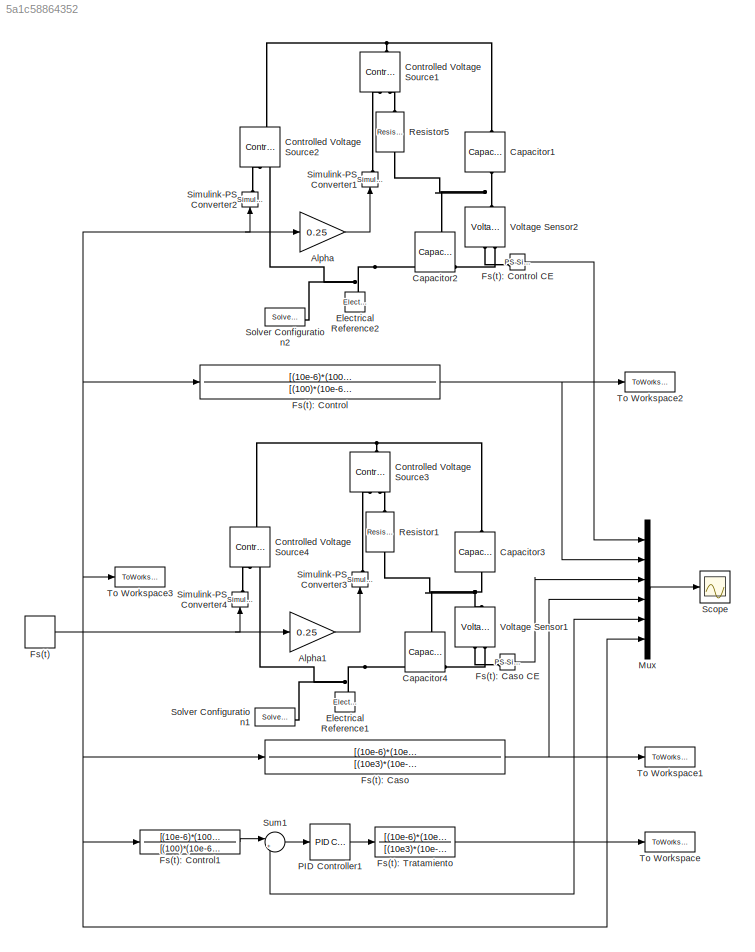
MODEL slx_5a1c58864352
KIND model
CONFIG AbsTol = auto
CONFIG EnableMultiTasking = off
CONFIG FixedStep = auto
CONFIG MaxStep = 1E-3
CONFIG MinStep = auto
CONFIG RelTol = 1e-3
CONFIG SampleTimeConstraint = Unconstrained
CONFIG SolverName = ode23t
CONFIG StartTime = 0.0
CONFIG StopTime = 10.0
BLOCK [Gain] Alpha
  Gain = 0.25
BLOCK [Gain] Alpha1
  Gain = 0.25
BLOCK [Reference] Capacitor1  REF=fl_lib/Electrical/Electrical Elements/Capacitor
  NameLocation = left
  SourceBlock = fl_lib/Electrical/Electrical Elements/Capacitor
  SourceType = Capacitor
BLOCK [Reference] Capacitor2  REF=fl_lib/Electrical/Electrical Elements/Capacitor
  NameLocation = left
  SourceBlock = fl_lib/Electrical/Electrical Elements/Capacitor
  SourceType = Capacitor
BLOCK [Reference] Capacitor3  REF=fl_lib/Electrical/Electrical Elements/Capacitor
  NameLocation = left
  SourceBlock = fl_lib/Electrical/Electrical Elements/Capacitor
  SourceType = Capacitor
BLOCK [Reference] Capacitor4  REF=fl_lib/Electrical/Electrical Elements/Capacitor
  NameLocation = left
  SourceBlock = fl_lib/Electrical/Electrical Elements/Capacitor
  SourceType = Capacitor
BLOCK [Reference] Controlled Voltage Source1  REF=fl_lib/Electrical/Electrical Sources/Controlled Voltage
Source
  NameLocation = right
  SourceBlock = fl_lib/Electrical/Electrical Sources/Controlled Voltage\nSource
  SourceType = Controlled Voltage\nSource
BLOCK [Reference] Controlled Voltage Source2  REF=fl_lib/Electrical/Electrical Sources/Controlled Voltage
Source
  NameLocation = right
  SourceBlock = fl_lib/Electrical/Electrical Sources/Controlled Voltage\nSource
  SourceType = Controlled Voltage\nSource
BLOCK [Reference] Controlled Voltage Source3  REF=fl_lib/Electrical/Electrical Sources/Controlled Voltage
Source
  NameLocation = right
  SourceBlock = fl_lib/Electrical/Electrical Sources/Controlled Voltage\nSource
  SourceType = Controlled Voltage\nSource
BLOCK [Reference] Controlled Voltage Source4  REF=fl_lib/Electrical/Electrical Sources/Controlled Voltage
Source
  NameLocation = right
  SourceBlock = fl_lib/Electrical/Electrical Sources/Controlled Voltage\nSource
  SourceType = Controlled Voltage\nSource
BLOCK [Reference] Electrical Reference1  REF=fl_lib/Electrical/Electrical Elements/Electrical Reference
  NameLocation = right
  SourceBlock = fl_lib/Electrical/Electrical Elements/Electrical Reference
  SourceType = Electrical Reference
BLOCK [Reference] Electrical Reference2  REF=fl_lib/Electrical/Electrical Elements/Electrical Reference
  NameLocation = right
  SourceBlock = fl_lib/Electrical/Electrical Elements/Electrical Reference
  SourceType = Electrical Reference
BLOCK [DiscretePulseGenerator] Fs(t)
  Period = 10
  PhaseDelay = 1
  PulseType = Time based
  PulseWidth = 10
BLOCK [TransferFcn] Fs(t): Caso
  Denominator = [(10e3)*(10e-6+100e-6),1]
  Numerator = [(10e-6)*(10e3),1-0.25]
BLOCK [Reference] Fs(t): Caso CE  REF=nesl_utility/PS-Simulink
Converter
  SourceBlock = nesl_utility/PS-Simulink\nConverter
  SourceType = PS-Simulink\nConverter
BLOCK [TransferFcn] Fs(t): Control
  Denominator = [(100)*(10e-6+100e-6),1]
  Numerator = [(10e-6)*(100),1-0.25]
BLOCK [Reference] Fs(t): Control CE  REF=nesl_utility/PS-Simulink
Converter
  SourceBlock = nesl_utility/PS-Simulink\nConverter
  SourceType = PS-Simulink\nConverter
BLOCK [TransferFcn] Fs(t): Control1
  Denominator = [(100)*(10e-6+100e-6),1]
  Numerator = [(10e-6)*(100),1-0.25]
BLOCK [TransferFcn] Fs(t): Tratamiento
  Denominator = [(10e3)*(10e-6+100e-6),1]
  Numerator = [(10e-6)*(10e3),1-0.25]
BLOCK [Mux] Mux
  DisplayOption = bar
  Inputs = 6
BLOCK [Reference] PID Controller1  REF=slpidlib/PID Controller
  LibrarySourceBlock = simulink/Continuous/PID Controller
  SourceBlock = slpidlib/PID Controller
  SourceType = PID 1dof
BLOCK [Reference] Resistor1  REF=fl_lib/Electrical/Electrical Elements/Resistor
  NameLocation = left
  SourceBlock = fl_lib/Electrical/Electrical Elements/Resistor
  SourceType = Resistor
BLOCK [Reference] Resistor5  REF=fl_lib/Electrical/Electrical Elements/Resistor
  NameLocation = left
  SourceBlock = fl_lib/Electrical/Electrical Elements/Resistor
  SourceType = Resistor
BLOCK [Scope] Scope
  Floating = off
  NumInputPorts = 1
  ScopeSpecificationString = Simulink.scopes.TimeScopeBlockCfg('CurrentConfiguration', extmgr.ConfigurationSet(extmgr.Configuration('Core','General UI',true,'FigureColor',[1 1 1]),extmgr.Configuration('Core','Source UI',true),extmgr.Configuration('Sources','WiredSimulink',true),extmgr.Configuration('Visuals','Time Domain',true,'SerializedDisplays',{struct('MinYLimReal','-0.12602','MaxYLimReal','1.12511','YLabelReal','','MinYL...<+2426ch>
BLOCK [Reference] Simulink-PS Converter1  REF=nesl_utility/Simulink-PS
Converter
  NameLocation = right
  SourceBlock = nesl_utility/Simulink-PS\nConverter
  SourceType = Simulink-PS\nConverter
BLOCK [Reference] Simulink-PS Converter2  REF=nesl_utility/Simulink-PS
Converter
  NameLocation = right
  SourceBlock = nesl_utility/Simulink-PS\nConverter
  SourceType = Simulink-PS\nConverter
BLOCK [Reference] Simulink-PS Converter3  REF=nesl_utility/Simulink-PS
Converter
  NameLocation = right
  SourceBlock = nesl_utility/Simulink-PS\nConverter
  SourceType = Simulink-PS\nConverter
BLOCK [Reference] Simulink-PS Converter4  REF=nesl_utility/Simulink-PS
Converter
  NameLocation = right
  SourceBlock = nesl_utility/Simulink-PS\nConverter
  SourceType = Simulink-PS\nConverter
BLOCK [Reference] Solver Configuration1  REF=nesl_utility/Solver
Configuration
  SourceBlock = nesl_utility/Solver\nConfiguration
  SourceType = Solver\nConfiguration
BLOCK [Reference] Solver Configuration2  REF=nesl_utility/Solver
Configuration
  SourceBlock = nesl_utility/Solver\nConfiguration
  SourceType = Solver\nConfiguration
BLOCK [Sum] Sum1
  Inputs = |+-
BLOCK [ToWorkspace] To Workspace
  FixptAsFi = on
  MaxDataPoints = inf
  SampleTime = -1
  VariableName = Fs3
BLOCK [ToWorkspace] To Workspace1
  FixptAsFi = on
  MaxDataPoints = inf
  SampleTime = -1
  VariableName = Fs2
BLOCK [ToWorkspace] To Workspace2
  FixptAsFi = on
  MaxDataPoints = inf
  SampleTime = -1
  VariableName = Fs1
BLOCK [ToWorkspace] To Workspace3
  FixptAsFi = on
  MaxDataPoints = inf
  SampleTime = -1
  VariableName = Fs
BLOCK [Reference] Voltage Sensor1  REF=fl_lib/Electrical/Electrical Sensors/Voltage Sensor
  NameLocation = right
  SourceBlock = fl_lib/Electrical/Electrical Sensors/Voltage Sensor
  SourceType = Voltage Sensor
BLOCK [Reference] Voltage Sensor2  REF=fl_lib/Electrical/Electrical Sensors/Voltage Sensor
  NameLocation = right
  SourceBlock = fl_lib/Electrical/Electrical Sensors/Voltage Sensor
  SourceType = Voltage Sensor
LINE Alpha1:1 -> Simulink-PS Converter3:1
LINE Alpha:1 -> Simulink-PS Converter1:1
LINE Fs(t): Caso CE:1 -> Mux:3
NET Fs(t): Caso:1 -> Mux:4, To Workspace1:1
LINE Fs(t): Control CE:1 -> Mux:1
LINE Fs(t): Control1:1 -> Sum1:1
NET Fs(t): Control:1 -> Mux:2, To Workspace2:1
NET Fs(t): Tratamiento:1 -> Mux:5, Sum1:2, To Workspace:1
NET Fs(t):1 -> Alpha1:1, Alpha:1, Fs(t): Caso:1, Fs(t): Control1:1, Fs(t): Control:1, Mux:6, Simulink-PS Converter2:1, Simulink-PS Converter4:1, To Workspace3:1
LINE Mux:1 -> Scope:1
LINE PID Controller1:1 -> Fs(t): Tratamiento:1
LINE Sum1:1 -> PID Controller1:1
PNET net1: Capacitor1:LConn1 -- Controlled Voltage Source1:LConn1 -- Controlled Voltage Source2:LConn1
PNET net2: Capacitor1:RConn1 -- Capacitor2:LConn1 -- Resistor5:RConn1 -- Voltage Sensor2:LConn1
PNET net3: Capacitor2:RConn1 -- Controlled Voltage Source2:RConn2 -- Electrical Reference2:LConn1 -- Solver Configuration2:RConn1 -- Voltage Sensor2:RConn2
PNET net4: Capacitor3:LConn1 -- Controlled Voltage Source3:LConn1 -- Controlled Voltage Source4:LConn1
PNET net5: Capacitor3:RConn1 -- Capacitor4:LConn1 -- Resistor1:RConn1 -- Voltage Sensor1:LConn1
PNET net6: Capacitor4:RConn1 -- Controlled Voltage Source4:RConn2 -- Electrical Reference1:LConn1 -- Solver Configuration1:RConn1 -- Voltage Sensor1:RConn2
PLINE Controlled Voltage Source1:RConn1 -- Simulink-PS Converter1:RConn1
PLINE Controlled Voltage Source1:RConn2 -- Resistor5:LConn1
PLINE Controlled Voltage Source2:RConn1 -- Simulink-PS Converter2:RConn1
PLINE Controlled Voltage Source3:RConn1 -- Simulink-PS Converter3:RConn1
PLINE Controlled Voltage Source3:RConn2 -- Resistor1:LConn1
PLINE Controlled Voltage Source4:RConn1 -- Simulink-PS Converter4:RConn1
PLINE Fs(t): Caso CE:LConn1 -- Voltage Sensor1:RConn1
PLINE Fs(t): Control CE:LConn1 -- Voltage Sensor2:RConn1
note: NET lines group one-source signal fan-out (src -> all destinations, sorted); 1:1 wires keep LINE; PNET lines group multi-terminal physical nets as a canonical sorted terminal list (undirected conserving connections); 2-terminal nets keep the pairwise PLINE form
